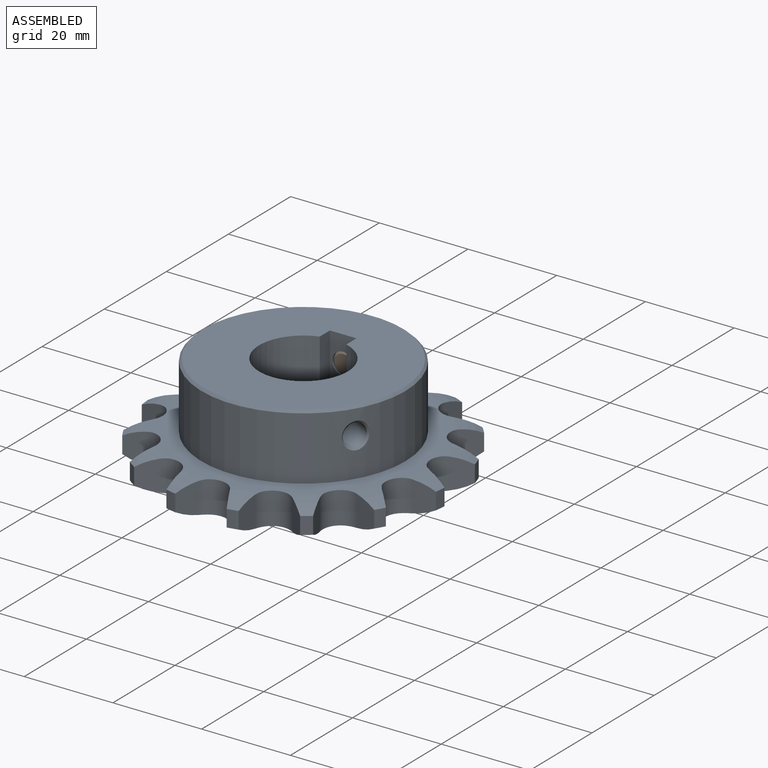
[diagram: assembled view]
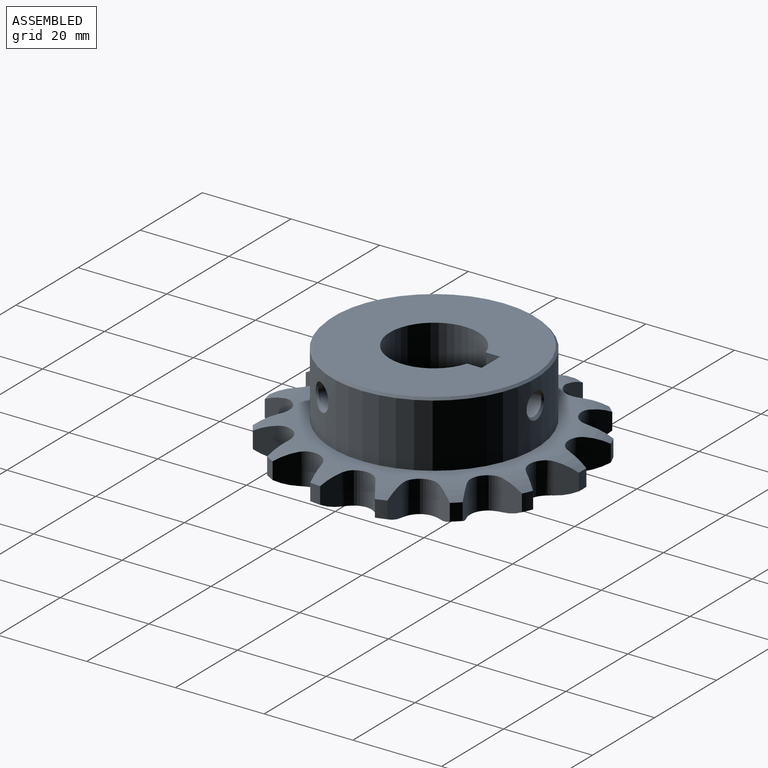
[diagram: assembled view, second angle]
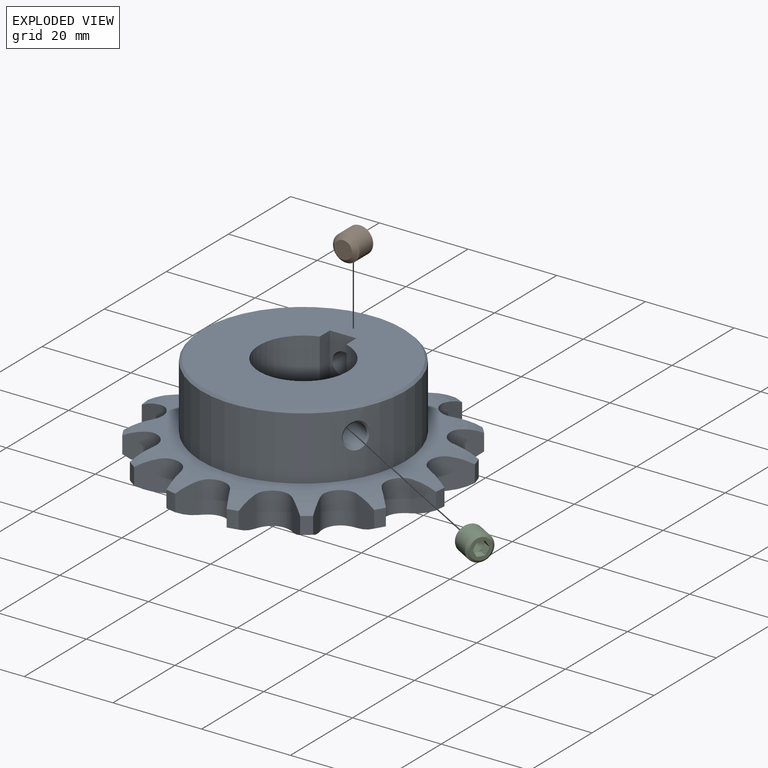
[diagram: exploded view]
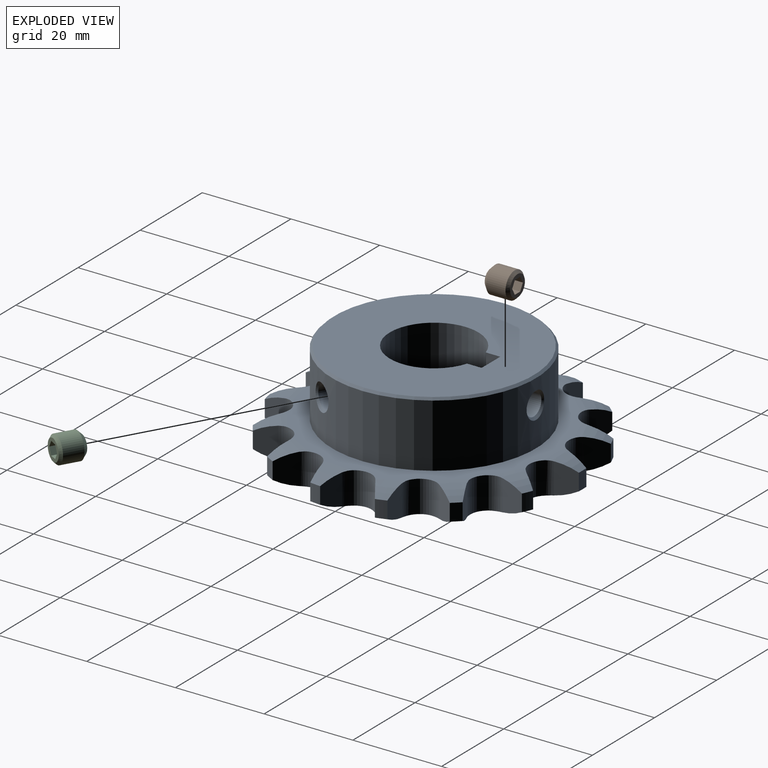
[diagram: exploded view, second angle]
ASSEMBLY  parts=3 mates=2
PART A: 103 faces, bbox 73.2x73.1x22.2 mm
  f0: cylinder r=3.96mm len=7.2mm, axis (0,0,1), area 61.2mm2, adj f1,f22,f24,f29,f30,f38,f39,f92
  f1: plane 7.13x4.98mm, normal (-0.17,-0.98,0), area 27.9mm2, adj f0,f27,f29,f38
  f2: torus R=27.15mm, axis (0,0,-1), area 29.9mm2, adj f7,f8,f14,f22,f47,f99
  f3: plane 7.13x4.22mm, normal (-0.56,-0.83,0), area 27.9mm2, adj f28,f36,f41,f81
  f4: plane 7.13x4.7mm, normal (-0.37,0.93,0), area 27.9mm2, adj f27,f29,f38,f41
  f5: plane 7.13x4.91mm, normal (0.24,-0.97,0), area 27.9mm2, adj f6,f30,f39,f100
  f6: cylinder r=3.96mm len=7.2mm, axis (0,0,1), area 61.2mm2, adj f5,f22,f24,f30,f31,f39,f48,f91
  f7: cylinder r=3.96mm len=7.2mm, axis (0,0,1), area 61.2mm2, adj f2,f8,f22,f24,f26,f46,f79,f97
  f8: plane 7.13x4.87mm, normal (-0.96,0.27,0), area 27.9mm2, adj f2,f7,f26,f99
  f9: plane 7.13x5.01mm, normal (-0.99,-0.14,0), area 27.9mm2, adj f10,f64,f79,f97
  f10: cylinder r=3.96mm len=7.2mm, axis (0,0,1), area 61.2mm2, adj f9,f22,f24,f45,f79,f80,f97,f98
  f11: cylinder r=3.96mm len=7.2mm, axis (0,0,1), area 61.2mm2, adj f12,f15,f22,f24,f76,f78,f95,f96
  f12: plane 7.13x4.56mm, normal (-0.44,0.9,0), area 27.9mm2, adj f11,f63,f76,f95
  f13: plane 7.13x3.92mm, normal (-0.77,0.64,0), area 27.9mm2, adj f14,f62,f78,f96
  f14: cylinder r=3.96mm len=7.2mm, axis (0,0,1), area 61.2mm2, adj f2,f13,f22,f24,f26,f47,f78,f96
  f15: plane 7.13x5.01mm, normal (0.99,-0.14,0), area 27.9mm2, adj f11,f62,f78,f96
  f16: cylinder r=10mm len=22mm, axis (0,0,1), area 1229.1mm2, adj f17,f18,f22,f43,f44
  f17: plane 45x45mm, normal (0,0,1), area 1258.6mm2, adj f16,f25,f42,f43,f44
  f18: cylinder r=2.46mm len=13.51mm, axis (0.87,-0.5,0), area 197.2mm2, adj f16,f19
  f19: cone r=3mm half-angle=45deg, axis (0.87,-0.5,0), area 11.1mm2, adj f18,f21
  f20: cylinder r=2.46mm len=9.66mm, axis (0,1,0), area 149.2mm2, adj f23,f42
  f21: cylinder r=23mm len=46mm, axis (0,0,1), area 2013.4mm2, adj f19,f23,f24,f25
  f22: plane 54.3x54.23mm, normal (0,0,-1), area 1961.7mm2, adj f0,f2,f6,f7,f10,f11,f14,f16
  f23: cone r=3mm half-angle=45deg, axis (0,1,0), area 10.7mm2, adj f20,f21
  f24: plane 54.3x54.23mm, normal (0,0,1), area 631.6mm2, adj f0,f6,f7,f10,f11,f14,f21,f26
  f25: cone r=23mm half-angle=45deg, axis (0,0,-1), area 101.1mm2, adj f17,f21
  f26: torus R=27.15mm, axis (0,0,-1), area 29.9mm2, adj f7,f8,f14,f24,f47,f99
  f27: cylinder r=33.5mm len=3.8mm, axis (0,0,1), area 9.1mm2, adj f1,f4,f29,f38
  f28: torus R=27.15mm, axis (0,0,-1), area 29.9mm2, adj f3,f24,f35,f36,f40,f41
  f29: torus R=27.15mm, axis (0,0,-1), area 29.9mm2, adj f0,f1,f4,f24,f27,f41
  f30: torus R=27.15mm, axis (0,0,-1), area 29.9mm2, adj f0,f5,f6,f24,f92,f100
  f31: torus R=27.15mm, axis (0,0,-1), area 29.9mm2, adj f6,f24,f32,f33,f55,f91
  f32: plane 7.13x4.02mm, normal (0.62,-0.79,0), area 27.9mm2, adj f31,f33,f48,f55
  f33: cylinder r=3.96mm len=7.2mm, axis (0,0,1), area 61.2mm2, adj f22,f24,f31,f32,f48,f49,f90,f102
  f34: plane 7.13x4.31mm, normal (-0.85,-0.53,0), area 27.9mm2, adj f35,f37,f80,f98
  f35: cylinder r=3.96mm len=7.2mm, axis (0,0,1), area 61.2mm2, adj f22,f24,f28,f34,f40,f80,f81,f98
  f36: cylinder r=33.5mm len=3.8mm, axis (0,0,1), area 9.1mm2, adj f3,f28,f40,f81
  f37: cylinder r=33.5mm len=3.8mm, axis (0,0,1), area 9.1mm2, adj f34,f45,f80,f98
  f38: torus R=27.15mm, axis (0,0,-1), area 29.9mm2, adj f0,f1,f4,f22,f27,f41
  f39: torus R=27.15mm, axis (0,0,-1), area 29.9mm2, adj f0,f5,f6,f22,f92,f100
  f40: plane 7.13x5.05mm, normal (0.04,1,0), area 27.9mm2, adj f28,f35,f36,f81
  f41: cylinder r=3.96mm len=7.2mm, axis (0,0,1), area 61.2mm2, adj f3,f4,f22,f24,f28,f29,f38,f81
  f42: plane 22x6mm, normal (0,-1,0), area 113mm2, adj f17,f20,f22,f43,f44
  f43: plane 22x3.26mm, normal (1,0,0), area 71.7mm2, adj f16,f17,f22,f42
  f44: plane 22x3.26mm, normal (-1,0,0), area 71.7mm2, adj f16,f17,f22,f42
  f45: plane 7.13x4.56mm, normal (0.44,0.9,0), area 27.9mm2, adj f10,f37,f80,f98
  f46: plane 7.13x3.92mm, normal (0.77,0.64,0), area 27.9mm2, adj f7,f64,f79,f97
  f47: plane 7.13x4.87mm, normal (0.96,0.27,0), area 27.9mm2, adj f2,f14,f26,f99
  f48: torus R=27.15mm, axis (0,0,-1), area 29.9mm2, adj f6,f22,f32,f33,f55,f91
  f49: torus R=27.15mm, axis (0,0,-1), area 29.9mm2, adj f22,f33,f50,f51,f54,f90
  f50: cylinder r=3.96mm len=7.2mm, axis (0,0,1), area 61.2mm2, adj f22,f24,f49,f51,f85,f89,f101,f102
  f51: plane 7.13x4.49mm, normal (0.88,-0.47,0), area 27.9mm2, adj f49,f50,f54,f102
  f52: plane 7.13x5.04mm, normal (1,-0.07,0), area 27.9mm2, adj f53,f56,f85,f101
  f53: cylinder r=3.96mm len=7.2mm, axis (0,0,1), area 61.2mm2, adj f22,f24,f52,f70,f84,f85,f88,f101
  f54: cylinder r=33.5mm len=3.8mm, axis (0,0,1), area 9.1mm2, adj f49,f51,f90,f102
  f55: cylinder r=33.5mm len=3.8mm, axis (0,0,1), area 9.1mm2, adj f31,f32,f48,f91
  f56: cylinder r=33.5mm len=3.8mm, axis (0,0,1), area 9.1mm2, adj f52,f85,f89,f101
  f57: cylinder r=33.5mm len=3.8mm, axis (0,0,1), area 9.1mm2, adj f59,f70,f84,f88
  f58: cylinder r=3.96mm len=7.2mm, axis (0,0,1), area 61.2mm2, adj f22,f24,f59,f69,f70,f83,f84,f87
  f59: plane 7.13x4.76mm, normal (0.94,0.34,0), area 27.9mm2, adj f57,f58,f70,f84
  f60: plane 7.13x3.68mm, normal (0.72,0.7,0), area 27.9mm2, adj f61,f69,f83,f94
  f61: cylinder r=3.96mm len=7.2mm, axis (0,0,1), area 61.2mm2, adj f22,f24,f60,f69,f71,f82,f83,f86
  f62: cylinder r=33.5mm len=3.8mm, axis (0,0,1), area 9.1mm2, adj f13,f15,f78,f96
  f63: cylinder r=33.5mm len=3.8mm, axis (0,0,1), area 9.1mm2, adj f12,f75,f76,f95
  f64: cylinder r=33.5mm len=3.8mm, axis (0,0,1), area 9.1mm2, adj f9,f46,f79,f97
  f65: cylinder r=33.5mm len=3.8mm, axis (0,0,1), area 9.1mm2, adj f66,f67,f72,f77
  f66: plane 7.13x5.05mm, normal (-0.04,1,0), area 27.9mm2, adj f65,f72,f74,f77
  f67: plane 7.13x4.22mm, normal (0.56,-0.83,0), area 27.9mm2, adj f65,f68,f72,f77
  f68: cylinder r=3.96mm len=7.2mm, axis (0,0,1), area 61.2mm2, adj f22,f24,f67,f71,f72,f73,f77,f82
  f69: torus R=27.15mm, axis (0,0,-1), area 29.9mm2, adj f24,f58,f60,f61,f87,f94
  f70: torus R=27.15mm, axis (0,0,-1), area 29.9mm2, adj f24,f53,f57,f58,f59,f88
  f71: torus R=27.15mm, axis (0,0,-1), area 29.9mm2, adj f24,f61,f68,f73,f86,f93
  f72: torus R=27.15mm, axis (0,0,-1), area 29.9mm2, adj f24,f65,f66,f67,f68,f74
  f73: plane 7.13x4.7mm, normal (0.37,0.93,0), area 27.9mm2, adj f68,f71,f82,f93
  f74: cylinder r=3.96mm len=7.2mm, axis (0,0,1), area 61.2mm2, adj f22,f24,f66,f72,f75,f76,f77,f95
  f75: plane 7.13x4.31mm, normal (0.85,-0.53,0), area 27.9mm2, adj f63,f74,f76,f95
  f76: torus R=27.15mm, axis (0,0,-1), area 29.9mm2, adj f11,f12,f22,f63,f74,f75
  f77: torus R=27.15mm, axis (0,0,-1), area 29.9mm2, adj f22,f65,f66,f67,f68,f74
  f78: torus R=27.15mm, axis (0,0,-1), area 29.9mm2, adj f11,f13,f14,f15,f22,f62
  f79: torus R=27.15mm, axis (0,0,-1), area 29.9mm2, adj f7,f9,f10,f22,f46,f64
  f80: torus R=27.15mm, axis (0,0,-1), area 29.9mm2, adj f10,f22,f34,f35,f37,f45
  f81: torus R=27.15mm, axis (0,0,-1), area 29.9mm2, adj f3,f22,f35,f36,f40,f41
  f82: torus R=27.15mm, axis (0,0,-1), area 29.9mm2, adj f22,f61,f68,f73,f86,f93
  f83: torus R=27.15mm, axis (0,0,-1), area 29.9mm2, adj f22,f58,f60,f61,f87,f94
  f84: torus R=27.15mm, axis (0,0,-1), area 29.9mm2, adj f22,f53,f57,f58,f59,f88
  f85: torus R=27.15mm, axis (0,0,-1), area 29.9mm2, adj f22,f50,f52,f53,f56,f89
  f86: plane 7.13x4.98mm, normal (0.17,-0.98,0), area 27.9mm2, adj f61,f71,f82,f93
  f87: plane 7.13x4.91mm, normal (-0.24,-0.97,0), area 27.9mm2, adj f58,f69,f83,f94
  f88: plane 7.13x4.02mm, normal (-0.62,-0.79,0), area 27.9mm2, adj f53,f57,f70,f84
  f89: plane 7.13x4.49mm, normal (-0.88,-0.47,0), area 27.9mm2, adj f50,f56,f85,f101
  f90: plane 7.13x5.04mm, normal (-1,-0.07,0), area 27.9mm2, adj f33,f49,f54,f102
  f91: plane 7.13x4.76mm, normal (-0.94,0.34,0), area 27.9mm2, adj f6,f31,f48,f55
  f92: plane 7.13x3.68mm, normal (-0.72,0.7,0), area 27.9mm2, adj f0,f30,f39,f100
  f93: cylinder r=33.5mm len=3.8mm, axis (0,0,1), area 9.1mm2, adj f71,f73,f82,f86
  f94: cylinder r=33.5mm len=3.8mm, axis (0,0,1), area 9.1mm2, adj f60,f69,f83,f87
  f95: torus R=27.15mm, axis (0,0,-1), area 29.9mm2, adj f11,f12,f24,f63,f74,f75
  f96: torus R=27.15mm, axis (0,0,-1), area 29.9mm2, adj f11,f13,f14,f15,f24,f62
  f97: torus R=27.15mm, axis (0,0,-1), area 29.9mm2, adj f7,f9,f10,f24,f46,f64
  f98: torus R=27.15mm, axis (0,0,-1), area 29.9mm2, adj f10,f24,f34,f35,f37,f45
  f99: cylinder r=33.5mm len=3.8mm, axis (0,0,1), area 9.1mm2, adj f2,f8,f26,f47
  f100: cylinder r=33.5mm len=3.8mm, axis (0,0,1), area 9.1mm2, adj f5,f30,f39,f92
  f101: torus R=27.15mm, axis (0,0,-1), area 29.9mm2, adj f24,f50,f52,f53,f56,f89
  f102: torus R=27.15mm, axis (0,0,-1), area 29.9mm2, adj f24,f33,f50,f51,f54,f90
PART B: 18 faces, bbox 6x6x6 mm
  f0: plane 1.5x0.43mm, normal (-1,0,0), area 0.1mm2, adj f5,f6,f17
  f1: plane 1.3x0.75mm, normal (-1,0,0), area 0.1mm2, adj f5,f16,f17
  f2: plane 1.3x0.75mm, normal (-1,0,0), area 0.1mm2, adj f5,f6,f13
  f3: plane 1.3x0.75mm, normal (-1,0,0), area 0.1mm2, adj f5,f13,f14
  f4: plane 1.5x0.43mm, normal (-1,0,0), area 0.1mm2, adj f5,f14,f15
  f5: cone r=1.5mm half-angle=60deg, axis (-1,0,0), area 8.2mm2, adj f0,f1,f2,f3,f4,f7
  f6: plane 2x1.5mm, normal (0,0.5,0.87), area 3.5mm2, adj f0,f2,f8,f13,f17
  f7: plane 1.3x0.75mm, normal (-1,0,0), area 0.1mm2, adj f5,f15,f16
  f8: plane 4.77x4.77mm, normal (-1,0,0), area 10.1mm2, adj f6,f9,f13,f14,f15,f16,f17
  f9: cone r=2.39mm half-angle=45deg, axis (1,0,0), area 14.7mm2, adj f8,f10
  f10: cylinder r=3mm len=6mm, axis (-1,0,0), area 82.7mm2, adj f9,f11
  f11: cone r=3mm half-angle=45deg, axis (-1,0,0), area 22.2mm2, adj f10,f12
  f12: plane 4x4mm, normal (1,0,0), area 12.6mm2, adj f11
  f13: plane 2x1.73mm, normal (0,1,0), area 3.5mm2, adj f2,f3,f6,f8,f14
  f14: plane 2x1.5mm, normal (0,0.5,-0.87), area 3.5mm2, adj f3,f4,f8,f13,f15
  f15: plane 2x1.5mm, normal (0,-0.5,-0.87), area 3.5mm2, adj f4,f7,f8,f14,f16
  f16: plane 2x1.73mm, normal (0,-1,0), area 3.5mm2, adj f1,f7,f8,f15,f17
  f17: plane 2x1.5mm, normal (0,-0.5,0.87), area 3.5mm2, adj f0,f1,f6,f8,f16
PART C: same geometry as B
PLACE A t=(11.35,2.25,5.39)mm
PLACE B rot(axis=(0.58,-0.58,-0.58),120deg) t=(11.35,15.05,21.39)mm
PLACE C rot(axis=(0.19,0.69,0.69),158.9deg) t=(19.68,-2.56,21.39)mm
MATE fastened A.f18 <-> C.f5  axis (0.87,-0.5,0) through (19.68,-2.56,21.39)mm
MATE fastened A.f20 <-> B.f5  axis (0,-1,0) through (11.35,15.05,21.39)mm
